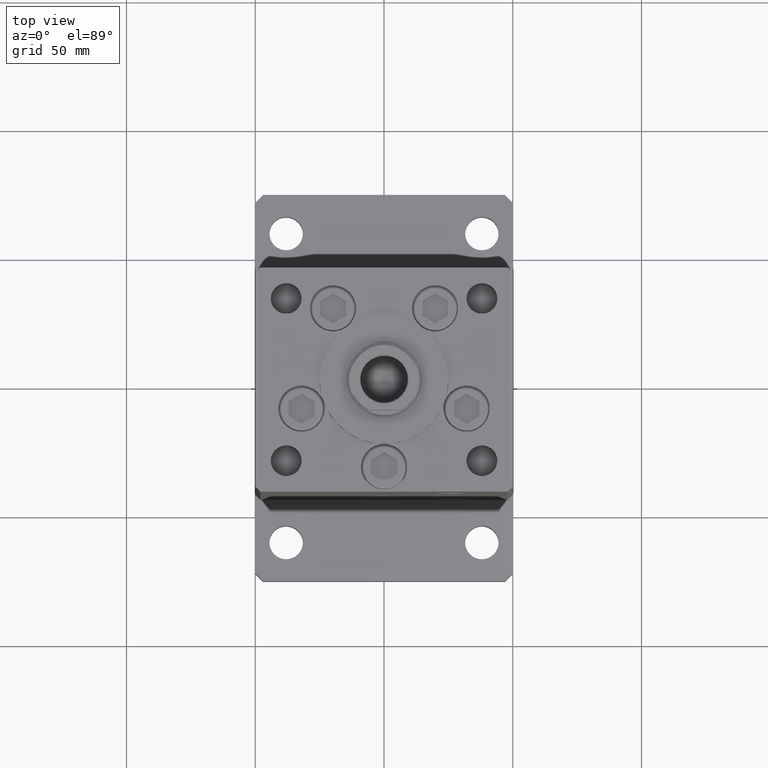
[diagram: clean part render]
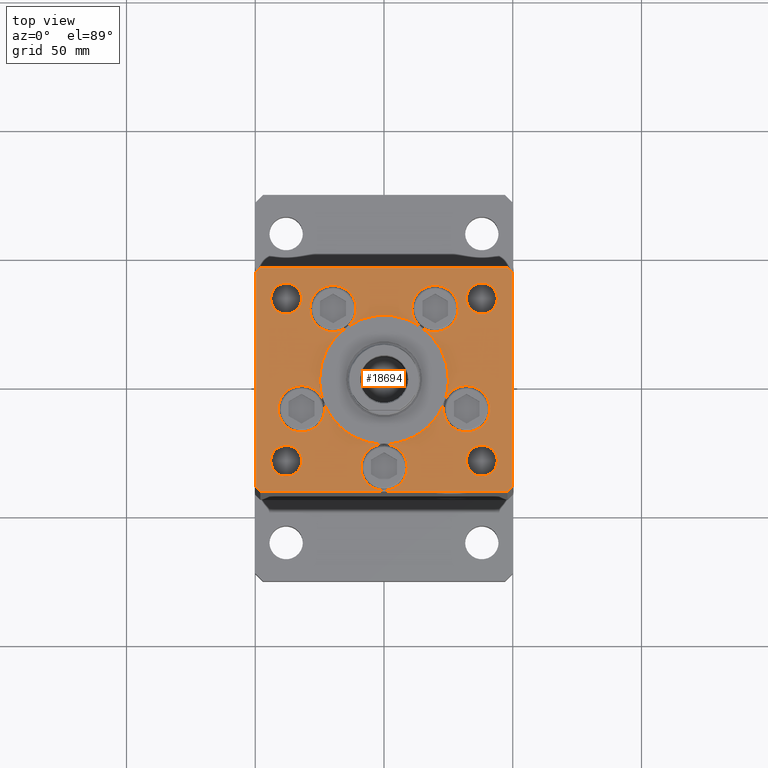
[diagram: same view with one face highlighted and labeled with its STEP entity id]
A machine part, top view. The second image highlights one B-rep face of the part: STEP entity #18694.
In plain terms, the highlighted planar face has unit normal (0, 0, 1).
Its self-contained STEP definition (entity closure, byte-faithful):
#46 = CIRCLE ( 'NONE', #25163, 9.000000000000000000 ) ;
#62 = ORIENTED_EDGE ( 'NONE', *, *, #40085, .F. ) ;
#128 = LINE ( 'NONE', #37584, #48802 ) ;
#303 = AXIS2_PLACEMENT_3D ( 'NONE', #20504, #37063, #4207 ) ;
#654 = CIRCLE ( 'NONE', #46574, 9.000000000000001776 ) ;
#678 = CARTESIAN_POINT ( 'NONE',  ( 38.00000000000000000, 31.50000000000000000, 0.000000000000000000 ) ) ;
#733 = DIRECTION ( 'NONE',  ( -1.000000000000000000, 0.000000000000000000, 0.000000000000000000 ) ) ;
#1040 = DIRECTION ( 'NONE',  ( 0.000000000000000000, 0.000000000000000000, 1.000000000000000000 ) ) ;
#1042 = LINE ( 'NONE', #5648, #13137 ) ;
#1057 = DIRECTION ( 'NONE',  ( 1.000000000000000000, 0.000000000000000000, 0.000000000000000000 ) ) ;
#1311 = DIRECTION ( 'NONE',  ( 1.000000000000000000, 0.000000000000000000, 0.000000000000000000 ) ) ;
#1321 = DIRECTION ( 'NONE',  ( 0.000000000000000000, 1.000000000000000000, 0.000000000000000000 ) ) ;
#1392 = DIRECTION ( 'NONE',  ( 0.000000000000000000, 0.000000000000000000, 1.000000000000000000 ) ) ;
#1597 = VERTEX_POINT ( 'NONE', #16274 ) ;
#2686 = FACE_BOUND ( 'NONE', #20215, .T. ) ;
#2979 = AXIS2_PLACEMENT_3D ( 'NONE', #42709, #35097, #47328 ) ;
#2994 = CARTESIAN_POINT ( 'NONE',  ( 19.82068048781374969, 27.62499999999998934, 0.000000000000000000 ) ) ;
#3014 = CIRCLE ( 'NONE', #14257, 9.000000000000000000 ) ;
#3066 = ORIENTED_EDGE ( 'NONE', *, *, #44824, .F. ) ;
#3083 = DIRECTION ( 'NONE',  ( 0.000000000000000000, 0.000000000000000000, 1.000000000000000000 ) ) ;
#3133 = VERTEX_POINT ( 'NONE', #38189 ) ;
#3160 = VERTEX_POINT ( 'NONE', #38462 ) ;
#3176 = CIRCLE ( 'NONE', #10959, 25.00000000000000000 ) ;
#3280 = VERTEX_POINT ( 'NONE', #52023 ) ;
#3408 = LINE ( 'NONE', #32973, #13474 ) ;
#3447 = CARTESIAN_POINT ( 'NONE',  ( 0.000000000000000000, -6.938893903907228378E-15, 0.000000000000000000 ) ) ;
#3752 = AXIS2_PLACEMENT_3D ( 'NONE', #7810, #32245, #4522 ) ;
#3930 = CARTESIAN_POINT ( 'NONE',  ( -32.00000000000000000, -31.50000000000000711, 0.000000000000000000 ) ) ;
#4007 = VERTEX_POINT ( 'NONE', #14824 ) ;
#4112 = DIRECTION ( 'NONE',  ( 1.000000000000000000, 0.000000000000000000, 0.000000000000000000 ) ) ;
#4130 = DIRECTION ( 'NONE',  ( 0.000000000000000000, 0.000000000000000000, 1.000000000000000000 ) ) ;
#4163 = VERTEX_POINT ( 'NONE', #42480 ) ;
#4206 = ORIENTED_EDGE ( 'NONE', *, *, #27240, .F. ) ;
#4207 = DIRECTION ( 'NONE',  ( 1.000000000000000000, 0.000000000000000000, 0.000000000000000000 ) ) ;
#4522 = DIRECTION ( 'NONE',  ( 1.000000000000000000, 0.000000000000000000, 0.000000000000000000 ) ) ;
#4660 = EDGE_CURVE ( 'NONE', #7148, #1597, #46, .T. ) ;
#4712 = AXIS2_PLACEMENT_3D ( 'NONE', #26101, #1392, #26377 ) ;
#4989 = CARTESIAN_POINT ( 'NONE',  ( 25.00000000000000000, -3.877276906038844941E-15, 0.000000000000000000 ) ) ;
#5201 = ORIENTED_EDGE ( 'NONE', *, *, #4660, .F. ) ;
#5388 = DIRECTION ( 'NONE',  ( 0.000000000000000000, 0.000000000000000000, 1.000000000000000000 ) ) ;
#5485 = CARTESIAN_POINT ( 'NONE',  ( 0.000000000000000000, -34.00000000000000000, 0.000000000000000000 ) ) ;
#5648 = CARTESIAN_POINT ( 'NONE',  ( 50.00000000000000000, 41.50000000000000711, 0.000000000000000000 ) ) ;
#5661 = CIRCLE ( 'NONE', #14345, 25.00000000000000000 ) ;
#5742 = ORIENTED_EDGE ( 'NONE', *, *, #6958, .T. ) ;
#5814 = AXIS2_PLACEMENT_3D ( 'NONE', #678, #46553, #25385 ) ;
#5950 = CARTESIAN_POINT ( 'NONE',  ( -38.00000000000000711, -31.50000000000000711, 0.000000000000000000 ) ) ;
#5996 = ORIENTED_EDGE ( 'NONE', *, *, #24723, .T. ) ;
#6455 = VERTEX_POINT ( 'NONE', #19992 ) ;
#6503 = DIRECTION ( 'NONE',  ( -0.000000000000000000, 0.000000000000000000, 1.000000000000000000 ) ) ;
#6623 = ORIENTED_EDGE ( 'NONE', *, *, #43242, .F. ) ;
#6958 = EDGE_CURVE ( 'NONE', #35473, #29186, #51285, .T. ) ;
#6973 = VERTEX_POINT ( 'NONE', #23408 ) ;
#7123 = CARTESIAN_POINT ( 'NONE',  ( 0.000000000000000000, -34.00000000000000000, 0.000000000000000000 ) ) ;
#7148 = VERTEX_POINT ( 'NONE', #13307 ) ;
#7287 = LINE ( 'NONE', #52365, #15804 ) ;
#7810 = CARTESIAN_POINT ( 'NONE',  ( 19.82068048781374969, 27.62499999999998934, 0.000000000000000000 ) ) ;
#7892 = CARTESIAN_POINT ( 'NONE',  ( 32.00000000000000000, -31.50000000000000711, 0.000000000000000000 ) ) ;
#7909 = DIRECTION ( 'NONE',  ( -1.000000000000000000, 0.000000000000000000, 0.000000000000000000 ) ) ;
#7985 = AXIS2_PLACEMENT_3D ( 'NONE', #5485, #10363, #26933 ) ;
#8163 = CIRCLE ( 'NONE', #38514, 9.000000000000000000 ) ;
#8281 = EDGE_CURVE ( 'NONE', #48979, #39585, #1042, .T. ) ;
#8542 = DIRECTION ( 'NONE',  ( 0.7071067811865474617, 0.7071067811865474617, 0.000000000000000000 ) ) ;
#8722 = DIRECTION ( 'NONE',  ( 1.000000000000000000, 0.000000000000000000, 0.000000000000000000 ) ) ;
#9657 = EDGE_CURVE ( 'NONE', #14805, #16824, #29639, .T. ) ;
#9718 = ORIENTED_EDGE ( 'NONE', *, *, #38994, .F. ) ;
#9812 = ORIENTED_EDGE ( 'NONE', *, *, #32131, .F. ) ;
#10082 = DIRECTION ( 'NONE',  ( 1.000000000000000000, 0.000000000000000000, 0.000000000000000000 ) ) ;
#10164 = AXIS2_PLACEMENT_3D ( 'NONE', #5950, #38799, #34176 ) ;
#10185 = VERTEX_POINT ( 'NONE', #15647 ) ;
#10303 = CARTESIAN_POINT ( 'NONE',  ( 0.000000000000000000, 0.000000000000000000, 0.000000000000000000 ) ) ;
#10363 = DIRECTION ( 'NONE',  ( 0.000000000000000000, 0.000000000000000000, 1.000000000000000000 ) ) ;
#10482 = EDGE_LOOP ( 'NONE', ( #27482, #4206, #9812, #21257, #18170, #45218, #30225, #12955, #52776, #18549, #37101, #33161, #44597, #3066, #42280, #37727, #14047, #9718, #16324, #5201, #62, #13876 ) ) ;
#10669 = VERTEX_POINT ( 'NONE', #15985 ) ;
#10824 = DIRECTION ( 'NONE',  ( 1.672022627447525486E-16, -1.000000000000000000, 0.000000000000000000 ) ) ;
#10959 = AXIS2_PLACEMENT_3D ( 'NONE', #48475, #14075, #17884 ) ;
#11037 = ORIENTED_EDGE ( 'NONE', *, *, #35741, .T. ) ;
#11223 = CARTESIAN_POINT ( 'NONE',  ( -32.05550741379015989, -11.33333333333332860, 0.000000000000000000 ) ) ;
#12254 = LINE ( 'NONE', #20151, #32652 ) ;
#12358 = VERTEX_POINT ( 'NONE', #15657 ) ;
#12392 = EDGE_CURVE ( 'NONE', #12552, #6455, #28752, .T. ) ;
#12420 = CIRCLE ( 'NONE', #36698, 9.000000000000001776 ) ;
#12447 = VERTEX_POINT ( 'NONE', #37348 ) ;
#12461 = CIRCLE ( 'NONE', #303, 9.000000000000001776 ) ;
#12552 = VERTEX_POINT ( 'NONE', #48453 ) ;
#12661 = CARTESIAN_POINT ( 'NONE',  ( 44.00000000000000000, 31.50000000000000000, 0.000000000000000000 ) ) ;
#12805 = CARTESIAN_POINT ( 'NONE',  ( 19.82068048781374969, 27.62499999999998934, 0.000000000000000000 ) ) ;
#12955 = ORIENTED_EDGE ( 'NONE', *, *, #37631, .F. ) ;
#13137 = VECTOR ( 'NONE', #21951, 999.9999999999998863 ) ;
#13307 = CARTESIAN_POINT ( 'NONE',  ( -28.82068048781374969, 27.62499999999998934, 0.000000000000000000 ) ) ;
#13474 = VECTOR ( 'NONE', #16424, 1000.000000000000000 ) ;
#13531 = DIRECTION ( 'NONE',  ( 0.000000000000000000, 0.000000000000000000, 1.000000000000000000 ) ) ;
#13876 = ORIENTED_EDGE ( 'NONE', *, *, #20967, .F. ) ;
#14047 = ORIENTED_EDGE ( 'NONE', *, *, #47530, .F. ) ;
#14075 = DIRECTION ( 'NONE',  ( 0.000000000000000000, 0.000000000000000000, 1.000000000000000000 ) ) ;
#14257 = AXIS2_PLACEMENT_3D ( 'NONE', #18628, #35183, #18894 ) ;
#14334 = CIRCLE ( 'NONE', #15213, 6.000000000000005329 ) ;
#14345 = AXIS2_PLACEMENT_3D ( 'NONE', #38776, #1040, #1311 ) ;
#14382 = FACE_BOUND ( 'NONE', #10482, .T. ) ;
#14805 = VERTEX_POINT ( 'NONE', #51319 ) ;
#14824 = CARTESIAN_POINT ( 'NONE',  ( 10.82068048781375147, 27.62499999999998934, 0.000000000000000000 ) ) ;
#15213 = AXIS2_PLACEMENT_3D ( 'NONE', #52944, #28239, #27970 ) ;
#15538 = DIRECTION ( 'NONE',  ( 1.000000000000000000, 0.000000000000000000, 0.000000000000000000 ) ) ;
#15647 = CARTESIAN_POINT ( 'NONE',  ( 41.05550741379015989, -11.33333333333332860, 0.000000000000000000 ) ) ;
#15657 = CARTESIAN_POINT ( 'NONE',  ( -48.00000000000000711, -43.50000000000002842, 0.000000000000000000 ) ) ;
#15804 = VECTOR ( 'NONE', #10824, 1000.000000000000000 ) ;
#15985 = CARTESIAN_POINT ( 'NONE',  ( 32.00000000000000000, 31.50000000000000000, 0.000000000000000000 ) ) ;
#16089 = VERTEX_POINT ( 'NONE', #40105 ) ;
#16274 = CARTESIAN_POINT ( 'NONE',  ( -14.57402977045128978, 20.31249999999999289, 0.000000000000000000 ) ) ;
#16323 = EDGE_CURVE ( 'NONE', #4163, #16089, #128, .T. ) ;
#16324 = ORIENTED_EDGE ( 'NONE', *, *, #44847, .F. ) ;
#16382 = EDGE_LOOP ( 'NONE', ( #37615, #11037 ) ) ;
#16424 = DIRECTION ( 'NONE',  ( 1.000000000000000000, 1.156482317317871331E-15, 0.000000000000000000 ) ) ;
#16764 = CARTESIAN_POINT ( 'NONE',  ( -38.00000000000000000, 31.50000000000000000, 0.000000000000000000 ) ) ;
#16824 = VERTEX_POINT ( 'NONE', #27452 ) ;
#17088 = CARTESIAN_POINT ( 'NONE',  ( -10.82068048781375147, 27.62499999999998934, 0.000000000000000000 ) ) ;
#17584 = AXIS2_PLACEMENT_3D ( 'NONE', #25444, #17827, #733 ) ;
#17590 = AXIS2_PLACEMENT_3D ( 'NONE', #2994, #49396, #32042 ) ;
#17827 = DIRECTION ( 'NONE',  ( -0.000000000000000000, -0.000000000000000000, -1.000000000000000000 ) ) ;
#17831 = CIRCLE ( 'NONE', #21324, 25.00000000000000000 ) ;
#17884 = DIRECTION ( 'NONE',  ( 1.000000000000000000, 0.000000000000000000, 0.000000000000000000 ) ) ;
#17974 = ORIENTED_EDGE ( 'NONE', *, *, #21060, .T. ) ;
#18170 = ORIENTED_EDGE ( 'NONE', *, *, #24299, .F. ) ;
#18228 = ORIENTED_EDGE ( 'NONE', *, *, #39978, .F. ) ;
#18549 = ORIENTED_EDGE ( 'NONE', *, *, #53706, .F. ) ;
#18628 = CARTESIAN_POINT ( 'NONE',  ( 0.000000000000000000, -34.00000000000000000, 0.000000000000000000 ) ) ;
#18694 = ADVANCED_FACE ( 'NONE', ( #14382, #30936, #44219, #43691, #22798, #2686 ), #48036, .T. ) ;
#18894 = DIRECTION ( 'NONE',  ( 1.000000000000000000, 0.000000000000000000, 0.000000000000000000 ) ) ;
#19210 = CARTESIAN_POINT ( 'NONE',  ( 14.57402977045128623, 20.31249999999998579, 0.000000000000000000 ) ) ;
#19283 = CARTESIAN_POINT ( 'NONE',  ( 32.05550741379015989, -11.33333333333332860, 0.000000000000000000 ) ) ;
#19344 = DIRECTION ( 'NONE',  ( 0.000000000000000000, 0.000000000000000000, 1.000000000000000000 ) ) ;
#19596 = EDGE_CURVE ( 'NONE', #3280, #32796, #47583, .T. ) ;
#19650 = CIRCLE ( 'NONE', #47406, 9.000000000000001776 ) ;
#19703 = CIRCLE ( 'NONE', #10164, 6.000000000000005329 ) ;
#19992 = CARTESIAN_POINT ( 'NONE',  ( -23.05550741379015633, -11.33333333333332860, 0.000000000000000000 ) ) ;
#20007 = DIRECTION ( 'NONE',  ( 1.000000000000000000, 0.000000000000000000, 0.000000000000000000 ) ) ;
#20151 = CARTESIAN_POINT ( 'NONE',  ( -49.99999999999999289, -41.50000000000000000, 0.000000000000000000 ) ) ;
#20215 = EDGE_LOOP ( 'NONE', ( #41436, #5742 ) ) ;
#20336 = CIRCLE ( 'NONE', #4712, 9.000000000000000000 ) ;
#20504 = CARTESIAN_POINT ( 'NONE',  ( 32.05550741379015989, -11.33333333333332860, 0.000000000000000000 ) ) ;
#20967 = EDGE_CURVE ( 'NONE', #1597, #27713, #42870, .T. ) ;
#21060 = EDGE_CURVE ( 'NONE', #16089, #48979, #49923, .T. ) ;
#21221 = LINE ( 'NONE', #38048, #24568 ) ;
#21257 = ORIENTED_EDGE ( 'NONE', *, *, #33535, .F. ) ;
#21324 = AXIS2_PLACEMENT_3D ( 'NONE', #41300, #29616, #4112 ) ;
#21334 = VERTEX_POINT ( 'NONE', #12661 ) ;
#21384 = CIRCLE ( 'NONE', #51733, 25.00000000000000000 ) ;
#21951 = DIRECTION ( 'NONE',  ( -0.7071067811865512365, 0.7071067811865439090, 0.000000000000000000 ) ) ;
#22077 = CARTESIAN_POINT ( 'NONE',  ( -48.00000000000000000, 43.49999999999997868, 0.000000000000000000 ) ) ;
#22101 = ORIENTED_EDGE ( 'NONE', *, *, #16323, .T. ) ;
#22241 = CARTESIAN_POINT ( 'NONE',  ( -44.00000000000001421, -31.50000000000000711, 0.000000000000000000 ) ) ;
#22498 = DIRECTION ( 'NONE',  ( 1.000000000000000000, 0.000000000000000000, 0.000000000000000000 ) ) ;
#22737 = CARTESIAN_POINT ( 'NONE',  ( -32.05550741379015989, -11.33333333333332860, 0.000000000000000000 ) ) ;
#22798 = FACE_OUTER_BOUND ( 'NONE', #40654, .T. ) ;
#23146 = CARTESIAN_POINT ( 'NONE',  ( 38.00000000000000711, -31.50000000000000711, 0.000000000000000000 ) ) ;
#23228 = CARTESIAN_POINT ( 'NONE',  ( 32.05550741379015989, -11.33333333333332860, 0.000000000000000000 ) ) ;
#23408 = CARTESIAN_POINT ( 'NONE',  ( -25.00000000000000000, -6.938893903907228378E-15, 0.000000000000000000 ) ) ;
#23450 = EDGE_CURVE ( 'NONE', #51212, #50304, #5661, .T. ) ;
#23506 = CARTESIAN_POINT ( 'NONE',  ( -50.00000000000000711, 41.49999999999999289, 0.000000000000000000 ) ) ;
#23679 = DIRECTION ( 'NONE',  ( -0.000000000000000000, -0.000000000000000000, -1.000000000000000000 ) ) ;
#23686 = CIRCLE ( 'NONE', #17590, 8.999999999999998224 ) ;
#24139 = EDGE_LOOP ( 'NONE', ( #35078, #18228 ) ) ;
#24161 = ORIENTED_EDGE ( 'NONE', *, *, #8281, .T. ) ;
#24299 = EDGE_CURVE ( 'NONE', #50304, #43477, #17831, .T. ) ;
#24568 = VECTOR ( 'NONE', #33696, 1000.000000000000000 ) ;
#24686 = CARTESIAN_POINT ( 'NONE',  ( -19.82068048781374969, 27.62499999999998934, 0.000000000000000000 ) ) ;
#24723 = EDGE_CURVE ( 'NONE', #12358, #4163, #3408, .T. ) ;
#25163 = AXIS2_PLACEMENT_3D ( 'NONE', #53687, #35606, #35872 ) ;
#25219 = CARTESIAN_POINT ( 'NONE',  ( 50.00000000000000000, -41.49999999999992895, 0.000000000000000000 ) ) ;
#25385 = DIRECTION ( 'NONE',  ( 1.000000000000000000, 0.000000000000000000, 0.000000000000000000 ) ) ;
#25444 = CARTESIAN_POINT ( 'NONE',  ( -38.00000000000000000, 31.50000000000000000, 0.000000000000000000 ) ) ;
#25466 = CIRCLE ( 'NONE', #32394, 5.999999999999998224 ) ;
#26101 = CARTESIAN_POINT ( 'NONE',  ( -19.82068048781374969, 27.62499999999998934, 0.000000000000000000 ) ) ;
#26377 = DIRECTION ( 'NONE',  ( 1.000000000000000000, 0.000000000000000000, 0.000000000000000000 ) ) ;
#26927 = VERTEX_POINT ( 'NONE', #35781 ) ;
#26933 = DIRECTION ( 'NONE',  ( 1.000000000000000000, 0.000000000000000000, 0.000000000000000000 ) ) ;
#27240 = EDGE_CURVE ( 'NONE', #4007, #43477, #33508, .T. ) ;
#27392 = CIRCLE ( 'NONE', #43022, 9.000000000000001776 ) ;
#27452 = CARTESIAN_POINT ( 'NONE',  ( 9.000000000000000000, -34.00000000000000000, 0.000000000000000000 ) ) ;
#27482 = ORIENTED_EDGE ( 'NONE', *, *, #50834, .F. ) ;
#27550 = CIRCLE ( 'NONE', #34472, 25.00000000000000000 ) ;
#27713 = VERTEX_POINT ( 'NONE', #17088 ) ;
#27785 = EDGE_CURVE ( 'NONE', #36425, #46072, #19703, .T. ) ;
#27970 = DIRECTION ( 'NONE',  ( 1.000000000000000000, 0.000000000000000000, 0.000000000000000000 ) ) ;
#28061 = DIRECTION ( 'NONE',  ( 1.000000000000000000, 0.000000000000000000, 0.000000000000000000 ) ) ;
#28066 = CIRCLE ( 'NONE', #3752, 8.999999999999998224 ) ;
#28239 = DIRECTION ( 'NONE',  ( 0.000000000000000000, 0.000000000000000000, 1.000000000000000000 ) ) ;
#28338 = AXIS2_PLACEMENT_3D ( 'NONE', #12805, #4130, #41581 ) ;
#28752 = CIRCLE ( 'NONE', #35701, 9.000000000000001776 ) ;
#29186 = VERTEX_POINT ( 'NONE', #33523 ) ;
#29249 = DIRECTION ( 'NONE',  ( -0.000000000000000000, -0.000000000000000000, -1.000000000000000000 ) ) ;
#29467 = CARTESIAN_POINT ( 'NONE',  ( -32.00000000000000000, 31.50000000000000000, 0.000000000000000000 ) ) ;
#29616 = DIRECTION ( 'NONE',  ( 0.000000000000000000, 0.000000000000000000, 1.000000000000000000 ) ) ;
#29639 = CIRCLE ( 'NONE', #7985, 9.000000000000000000 ) ;
#30097 = VERTEX_POINT ( 'NONE', #44775 ) ;
#30225 = ORIENTED_EDGE ( 'NONE', *, *, #44140, .F. ) ;
#30911 = AXIS2_PLACEMENT_3D ( 'NONE', #34704, #5388, #22498 ) ;
#30936 = FACE_BOUND ( 'NONE', #16382, .T. ) ;
#31451 = CIRCLE ( 'NONE', #17584, 5.999999999999998224 ) ;
#31654 = CIRCLE ( 'NONE', #53314, 6.000000000000005329 ) ;
#31805 = CIRCLE ( 'NONE', #5814, 5.999999999999998224 ) ;
#31813 = DIRECTION ( 'NONE',  ( -1.000000000000000000, 0.000000000000000000, 0.000000000000000000 ) ) ;
#31847 = CARTESIAN_POINT ( 'NONE',  ( -32.05550741379015989, -11.33333333333332860, 0.000000000000000000 ) ) ;
#32042 = DIRECTION ( 'NONE',  ( 1.000000000000000000, 0.000000000000000000, 0.000000000000000000 ) ) ;
#32131 = EDGE_CURVE ( 'NONE', #49706, #4007, #23686, .T. ) ;
#32245 = DIRECTION ( 'NONE',  ( 0.000000000000000000, 0.000000000000000000, 1.000000000000000000 ) ) ;
#32394 = AXIS2_PLACEMENT_3D ( 'NONE', #16764, #29249, #50155 ) ;
#32430 = CIRCLE ( 'NONE', #2979, 25.00000000000000000 ) ;
#32652 = VECTOR ( 'NONE', #45382, 1000.000000000000114 ) ;
#32796 = VERTEX_POINT ( 'NONE', #23506 ) ;
#32973 = CARTESIAN_POINT ( 'NONE',  ( -48.00000000000000711, -43.50000000000002842, 0.000000000000000000 ) ) ;
#33161 = ORIENTED_EDGE ( 'NONE', *, *, #9657, .F. ) ;
#33251 = EDGE_CURVE ( 'NONE', #6455, #3160, #12420, .T. ) ;
#33278 = AXIS2_PLACEMENT_3D ( 'NONE', #10303, #6503, #35282 ) ;
#33508 = CIRCLE ( 'NONE', #28338, 8.999999999999998224 ) ;
#33523 = CARTESIAN_POINT ( 'NONE',  ( 44.00000000000001421, -31.50000000000000711, 0.000000000000000000 ) ) ;
#33535 = EDGE_CURVE ( 'NONE', #43477, #49706, #28066, .T. ) ;
#33599 = ORIENTED_EDGE ( 'NONE', *, *, #27785, .F. ) ;
#33626 = DIRECTION ( 'NONE',  ( 0.000000000000000000, 0.000000000000000000, 1.000000000000000000 ) ) ;
#33696 = DIRECTION ( 'NONE',  ( -1.000000000000000000, -2.168404344971008868E-16, 0.000000000000000000 ) ) ;
#34176 = DIRECTION ( 'NONE',  ( 1.000000000000000000, 0.000000000000000000, 0.000000000000000000 ) ) ;
#34472 = AXIS2_PLACEMENT_3D ( 'NONE', #3447, #49851, #20007 ) ;
#34704 = CARTESIAN_POINT ( 'NONE',  ( 0.000000000000000000, -6.938893903907228378E-15, 0.000000000000000000 ) ) ;
#34823 = EDGE_CURVE ( 'NONE', #32796, #30097, #7287, .T. ) ;
#35078 = ORIENTED_EDGE ( 'NONE', *, *, #47336, .F. ) ;
#35097 = DIRECTION ( 'NONE',  ( 0.000000000000000000, 0.000000000000000000, 1.000000000000000000 ) ) ;
#35183 = DIRECTION ( 'NONE',  ( 0.000000000000000000, 0.000000000000000000, 1.000000000000000000 ) ) ;
#35282 = DIRECTION ( 'NONE',  ( 1.000000000000000000, 0.000000000000000000, 0.000000000000000000 ) ) ;
#35473 = VERTEX_POINT ( 'NONE', #7892 ) ;
#35606 = DIRECTION ( 'NONE',  ( 0.000000000000000000, 0.000000000000000000, 1.000000000000000000 ) ) ;
#35701 = AXIS2_PLACEMENT_3D ( 'NONE', #22737, #39309, #47715 ) ;
#35741 = EDGE_CURVE ( 'NONE', #3133, #41682, #31451, .T. ) ;
#35781 = CARTESIAN_POINT ( 'NONE',  ( 0.000000000000000000, -25.00000000000000000, 0.000000000000000000 ) ) ;
#35872 = DIRECTION ( 'NONE',  ( 1.000000000000000000, 0.000000000000000000, 0.000000000000000000 ) ) ;
#36062 = EDGE_CURVE ( 'NONE', #39585, #3280, #21221, .T. ) ;
#36425 = VERTEX_POINT ( 'NONE', #22241 ) ;
#36698 = AXIS2_PLACEMENT_3D ( 'NONE', #31847, #40798, #52757 ) ;
#36968 = CARTESIAN_POINT ( 'NONE',  ( 38.00000000000000000, 31.50000000000000000, 0.000000000000000000 ) ) ;
#37063 = DIRECTION ( 'NONE',  ( 0.000000000000000000, 0.000000000000000000, 1.000000000000000000 ) ) ;
#37101 = ORIENTED_EDGE ( 'NONE', *, *, #40665, .F. ) ;
#37221 = DIRECTION ( 'NONE',  ( -0.000000000000000000, -0.000000000000000000, -1.000000000000000000 ) ) ;
#37348 = CARTESIAN_POINT ( 'NONE',  ( 23.05550741379015633, -11.33333333333332682, 0.000000000000000000 ) ) ;
#37584 = CARTESIAN_POINT ( 'NONE',  ( 48.00000000000000711, -43.49999999999992184, 0.000000000000000000 ) ) ;
#37615 = ORIENTED_EDGE ( 'NONE', *, *, #38197, .T. ) ;
#37631 = EDGE_CURVE ( 'NONE', #12447, #10185, #12461, .T. ) ;
#37655 = CIRCLE ( 'NONE', #40263, 5.999999999999998224 ) ;
#37727 = ORIENTED_EDGE ( 'NONE', *, *, #12392, .F. ) ;
#37969 = CARTESIAN_POINT ( 'NONE',  ( 28.82068048781374969, 27.62499999999998934, 0.000000000000000000 ) ) ;
#37971 = CARTESIAN_POINT ( 'NONE',  ( 47.99999999999999289, 43.50000000000000000, 0.000000000000000000 ) ) ;
#38048 = CARTESIAN_POINT ( 'NONE',  ( 47.99999999999999289, 43.50000000000000000, 0.000000000000000000 ) ) ;
#38189 = CARTESIAN_POINT ( 'NONE',  ( -44.00000000000000000, 31.50000000000000000, 0.000000000000000000 ) ) ;
#38197 = EDGE_CURVE ( 'NONE', #41682, #3133, #25466, .T. ) ;
#38462 = CARTESIAN_POINT ( 'NONE',  ( -23.57022603955158502, -8.333333333333332149, 0.000000000000000000 ) ) ;
#38482 = VECTOR ( 'NONE', #43771, 1000.000000000000000 ) ;
#38514 = AXIS2_PLACEMENT_3D ( 'NONE', #7123, #19344, #15538 ) ;
#38516 = CARTESIAN_POINT ( 'NONE',  ( 0.000000000000000000, -6.938893903907228378E-15, 0.000000000000000000 ) ) ;
#38776 = CARTESIAN_POINT ( 'NONE',  ( 0.000000000000000000, -6.938893903907228378E-15, 0.000000000000000000 ) ) ;
#38799 = DIRECTION ( 'NONE',  ( 0.000000000000000000, 0.000000000000000000, 1.000000000000000000 ) ) ;
#38994 = EDGE_CURVE ( 'NONE', #6973, #3160, #32430, .T. ) ;
#39127 = DIRECTION ( 'NONE',  ( 0.000000000000000000, 0.000000000000000000, 1.000000000000000000 ) ) ;
#39309 = DIRECTION ( 'NONE',  ( 0.000000000000000000, 0.000000000000000000, 1.000000000000000000 ) ) ;
#39585 = VERTEX_POINT ( 'NONE', #37971 ) ;
#39916 = EDGE_CURVE ( 'NONE', #26927, #14805, #8163, .T. ) ;
#39978 = EDGE_CURVE ( 'NONE', #10669, #21334, #37655, .T. ) ;
#40085 = EDGE_CURVE ( 'NONE', #27713, #7148, #20336, .T. ) ;
#40105 = CARTESIAN_POINT ( 'NONE',  ( 50.00000000000000000, -41.49999999999992895, 0.000000000000000000 ) ) ;
#40263 = AXIS2_PLACEMENT_3D ( 'NONE', #36968, #49452, #8722 ) ;
#40293 = ORIENTED_EDGE ( 'NONE', *, *, #50570, .T. ) ;
#40458 = CIRCLE ( 'NONE', #30911, 25.00000000000000000 ) ;
#40654 = EDGE_LOOP ( 'NONE', ( #40293, #5996, #22101, #17974, #24161, #43648, #47734, #46945 ) ) ;
#40665 = EDGE_CURVE ( 'NONE', #16824, #26927, #3014, .T. ) ;
#40798 = DIRECTION ( 'NONE',  ( 0.000000000000000000, 0.000000000000000000, 1.000000000000000000 ) ) ;
#41300 = CARTESIAN_POINT ( 'NONE',  ( 0.000000000000000000, -6.938893903907228378E-15, 0.000000000000000000 ) ) ;
#41436 = ORIENTED_EDGE ( 'NONE', *, *, #42133, .T. ) ;
#41581 = DIRECTION ( 'NONE',  ( 1.000000000000000000, 0.000000000000000000, 0.000000000000000000 ) ) ;
#41682 = VERTEX_POINT ( 'NONE', #29467 ) ;
#42133 = EDGE_CURVE ( 'NONE', #29186, #35473, #31654, .T. ) ;
#42280 = ORIENTED_EDGE ( 'NONE', *, *, #33251, .F. ) ;
#42480 = CARTESIAN_POINT ( 'NONE',  ( 48.00000000000000711, -43.49999999999992184, 0.000000000000000000 ) ) ;
#42709 = CARTESIAN_POINT ( 'NONE',  ( 0.000000000000000000, -6.938893903907228378E-15, 0.000000000000000000 ) ) ;
#42870 = CIRCLE ( 'NONE', #49798, 9.000000000000000000 ) ;
#43022 = AXIS2_PLACEMENT_3D ( 'NONE', #23228, #52002, #44380 ) ;
#43242 = EDGE_CURVE ( 'NONE', #46072, #36425, #14334, .T. ) ;
#43477 = VERTEX_POINT ( 'NONE', #19210 ) ;
#43648 = ORIENTED_EDGE ( 'NONE', *, *, #36062, .T. ) ;
#43691 = FACE_BOUND ( 'NONE', #49628, .T. ) ;
#43771 = DIRECTION ( 'NONE',  ( -0.7071067811865524577, -0.7071067811865426878, 0.000000000000000000 ) ) ;
#44140 = EDGE_CURVE ( 'NONE', #10185, #51212, #27392, .T. ) ;
#44219 = FACE_BOUND ( 'NONE', #24139, .T. ) ;
#44343 = AXIS2_PLACEMENT_3D ( 'NONE', #23146, #23679, #31813 ) ;
#44380 = DIRECTION ( 'NONE',  ( 1.000000000000000000, 0.000000000000000000, 0.000000000000000000 ) ) ;
#44597 = ORIENTED_EDGE ( 'NONE', *, *, #39916, .F. ) ;
#44775 = CARTESIAN_POINT ( 'NONE',  ( -49.99999999999999289, -41.50000000000000000, 0.000000000000000000 ) ) ;
#44824 = EDGE_CURVE ( 'NONE', #3160, #26927, #40458, .T. ) ;
#44847 = EDGE_CURVE ( 'NONE', #1597, #6973, #3176, .T. ) ;
#45218 = ORIENTED_EDGE ( 'NONE', *, *, #23450, .F. ) ;
#45306 = EDGE_CURVE ( 'NONE', #51212, #12447, #19650, .T. ) ;
#45382 = DIRECTION ( 'NONE',  ( 0.7071067811865402453, -0.7071067811865549002, 0.000000000000000000 ) ) ;
#46072 = VERTEX_POINT ( 'NONE', #3930 ) ;
#46351 = VECTOR ( 'NONE', #1321, 1000.000000000000000 ) ;
#46553 = DIRECTION ( 'NONE',  ( 0.000000000000000000, 0.000000000000000000, 1.000000000000000000 ) ) ;
#46574 = AXIS2_PLACEMENT_3D ( 'NONE', #11223, #3083, #28061 ) ;
#46945 = ORIENTED_EDGE ( 'NONE', *, *, #34823, .T. ) ;
#47328 = DIRECTION ( 'NONE',  ( 1.000000000000000000, 0.000000000000000000, 0.000000000000000000 ) ) ;
#47336 = EDGE_CURVE ( 'NONE', #21334, #10669, #31805, .T. ) ;
#47406 = AXIS2_PLACEMENT_3D ( 'NONE', #19283, #39127, #10082 ) ;
#47530 = EDGE_CURVE ( 'NONE', #3160, #12552, #654, .T. ) ;
#47583 = LINE ( 'NONE', #22077, #38482 ) ;
#47715 = DIRECTION ( 'NONE',  ( 1.000000000000000000, 0.000000000000000000, 0.000000000000000000 ) ) ;
#47734 = ORIENTED_EDGE ( 'NONE', *, *, #19596, .T. ) ;
#48036 = PLANE ( 'NONE',  #33278 ) ;
#48453 = CARTESIAN_POINT ( 'NONE',  ( -41.05550741379015989, -11.33333333333332682, 0.000000000000000000 ) ) ;
#48475 = CARTESIAN_POINT ( 'NONE',  ( 0.000000000000000000, -6.938893903907228378E-15, 0.000000000000000000 ) ) ;
#48802 = VECTOR ( 'NONE', #8542, 1000.000000000000114 ) ;
#48979 = VERTEX_POINT ( 'NONE', #49892 ) ;
#49396 = DIRECTION ( 'NONE',  ( 0.000000000000000000, 0.000000000000000000, 1.000000000000000000 ) ) ;
#49452 = DIRECTION ( 'NONE',  ( 0.000000000000000000, 0.000000000000000000, 1.000000000000000000 ) ) ;
#49628 = EDGE_LOOP ( 'NONE', ( #6623, #33599 ) ) ;
#49706 = VERTEX_POINT ( 'NONE', #37969 ) ;
#49798 = AXIS2_PLACEMENT_3D ( 'NONE', #24686, #33626, #53721 ) ;
#49851 = DIRECTION ( 'NONE',  ( 0.000000000000000000, 0.000000000000000000, 1.000000000000000000 ) ) ;
#49892 = CARTESIAN_POINT ( 'NONE',  ( 50.00000000000000000, 41.50000000000000711, 0.000000000000000000 ) ) ;
#49923 = LINE ( 'NONE', #25219, #46351 ) ;
#50155 = DIRECTION ( 'NONE',  ( -1.000000000000000000, 0.000000000000000000, 0.000000000000000000 ) ) ;
#50304 = VERTEX_POINT ( 'NONE', #4989 ) ;
#50570 = EDGE_CURVE ( 'NONE', #30097, #12358, #12254, .T. ) ;
#50614 = CARTESIAN_POINT ( 'NONE',  ( 23.57022603955158502, -8.333333333333332149, 0.000000000000000000 ) ) ;
#50834 = EDGE_CURVE ( 'NONE', #43477, #1597, #21384, .T. ) ;
#51212 = VERTEX_POINT ( 'NONE', #50614 ) ;
#51285 = CIRCLE ( 'NONE', #44343, 6.000000000000005329 ) ;
#51319 = CARTESIAN_POINT ( 'NONE',  ( -9.000000000000000000, -34.00000000000000000, 0.000000000000000000 ) ) ;
#51733 = AXIS2_PLACEMENT_3D ( 'NONE', #38516, #13531, #1057 ) ;
#52002 = DIRECTION ( 'NONE',  ( 0.000000000000000000, 0.000000000000000000, 1.000000000000000000 ) ) ;
#52023 = CARTESIAN_POINT ( 'NONE',  ( -48.00000000000000000, 43.49999999999997868, 0.000000000000000000 ) ) ;
#52365 = CARTESIAN_POINT ( 'NONE',  ( -50.00000000000000711, 41.49999999999999289, 0.000000000000000000 ) ) ;
#52757 = DIRECTION ( 'NONE',  ( 1.000000000000000000, 0.000000000000000000, 0.000000000000000000 ) ) ;
#52776 = ORIENTED_EDGE ( 'NONE', *, *, #45306, .F. ) ;
#52944 = CARTESIAN_POINT ( 'NONE',  ( -38.00000000000000711, -31.50000000000000711, 0.000000000000000000 ) ) ;
#53253 = CARTESIAN_POINT ( 'NONE',  ( 38.00000000000000711, -31.50000000000000711, 0.000000000000000000 ) ) ;
#53314 = AXIS2_PLACEMENT_3D ( 'NONE', #53253, #37221, #7909 ) ;
#53687 = CARTESIAN_POINT ( 'NONE',  ( -19.82068048781374969, 27.62499999999998934, 0.000000000000000000 ) ) ;
#53706 = EDGE_CURVE ( 'NONE', #26927, #51212, #27550, .T. ) ;
#53721 = DIRECTION ( 'NONE',  ( 1.000000000000000000, 0.000000000000000000, 0.000000000000000000 ) ) ;